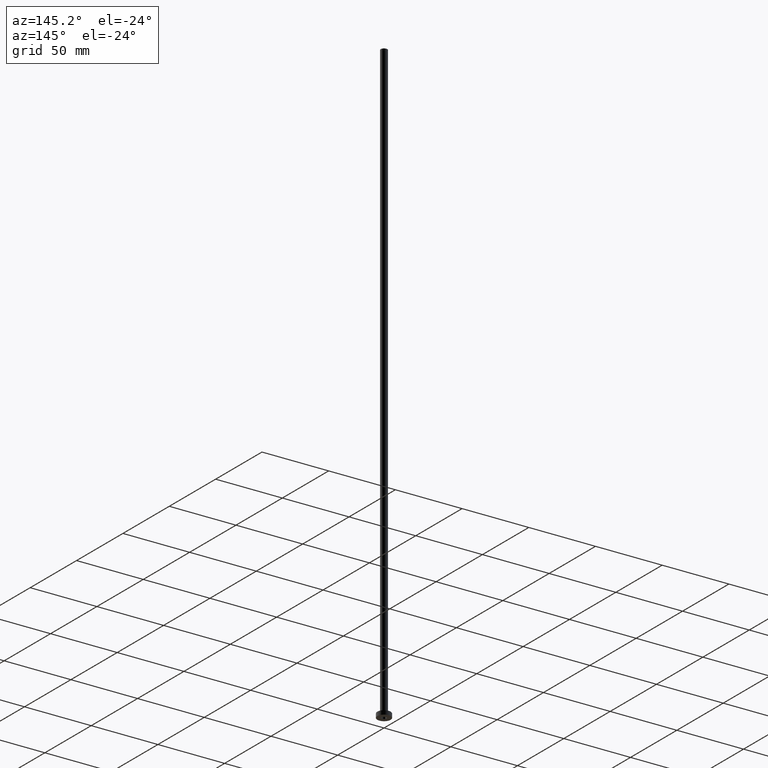
[diagram: clean part render]
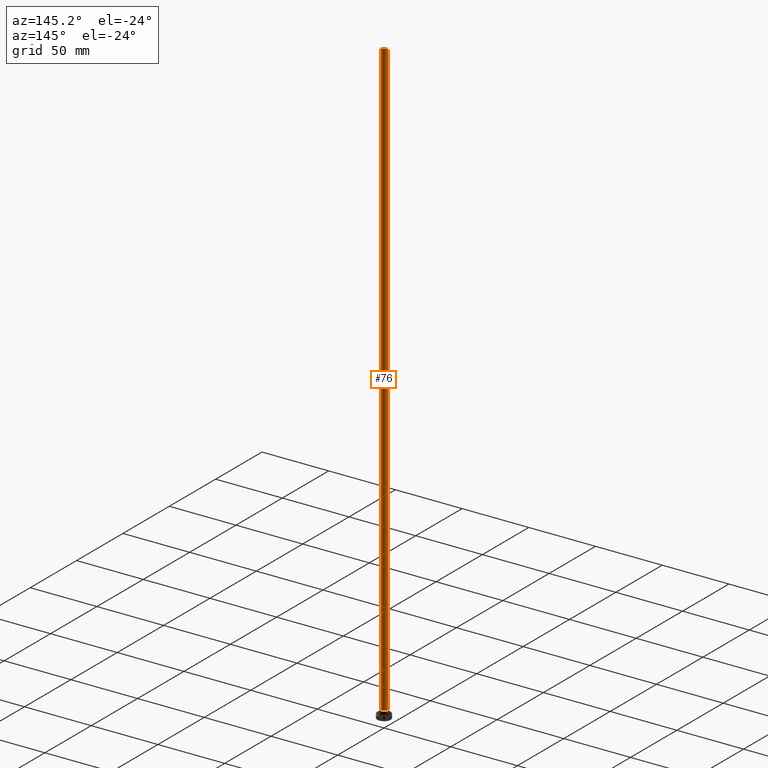
[diagram: same view with one face highlighted and labeled with its STEP entity id]
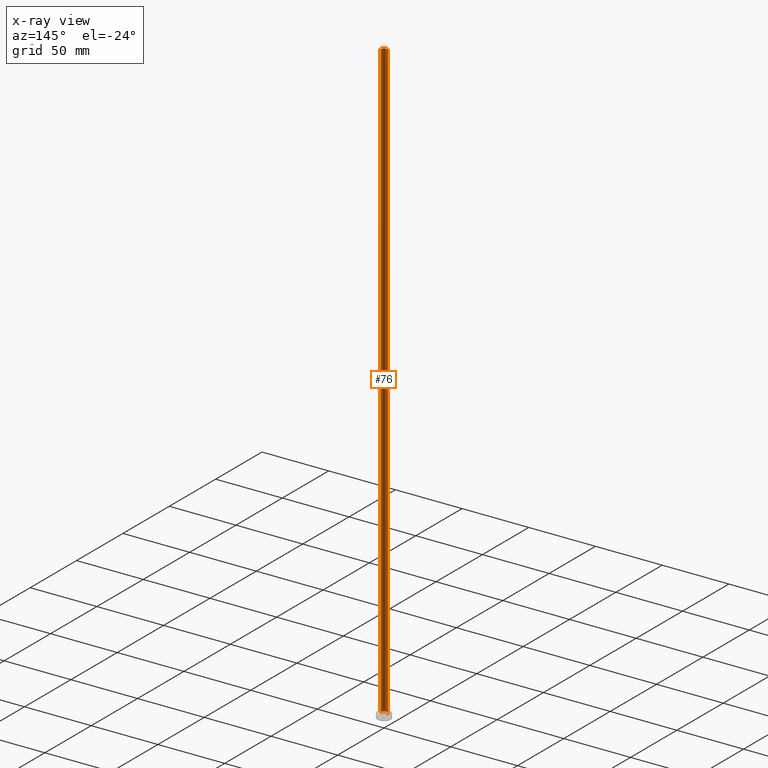
[diagram: x-ray of the same camera — body ghosted, the highlighted face saturated]
A machine part, auxiliary view. The second image highlights one B-rep face of the part: STEP entity #76.
The next image is the same camera in x-ray: the body ghosted, the highlighted face saturated — about 0% of this face is hidden behind the body in this view.
In plain terms, the highlighted cylindrical surface (edge-blend (fillet) strip) has radius 2.5 mm, axis along (-0, -0, -1).
Its self-contained STEP definition (entity closure, byte-faithful):
#8 = DIRECTION ( 'NONE',  ( 1.000000000000000000, 0.000000000000000000, 0.000000000000000000 ) ) ;
#27 = CARTESIAN_POINT ( 'NONE',  ( -2.500000000000000000, 0.000000000000000000, 450.0000000000000000 ) ) ;
#36 = FACE_OUTER_BOUND ( 'NONE', #182, .T. ) ;
#67 = CARTESIAN_POINT ( 'NONE',  ( 0.000000000000000000, 0.000000000000000000, 3.300000000000025135 ) ) ;
#76 = ADVANCED_FACE ( 'NONE', ( #36 ), #326, .T. ) ;
#86 = EDGE_CURVE ( 'NONE', #418, #188, #330, .T. ) ;
#87 = DIRECTION ( 'NONE',  ( 0.000000000000000000, 0.000000000000000000, 1.000000000000000000 ) ) ;
#106 = CARTESIAN_POINT ( 'NONE',  ( 2.500000000000000000, 3.061616997868383141E-16, 450.0000000000000000 ) ) ;
#115 = ORIENTED_EDGE ( 'NONE', *, *, #298, .F. ) ;
#139 = DIRECTION ( 'NONE',  ( -0.000000000000000000, -0.000000000000000000, -1.000000000000000000 ) ) ;
#161 = LINE ( 'NONE', #270, #315 ) ;
#166 = ORIENTED_EDGE ( 'NONE', *, *, #333, .F. ) ;
#177 = EDGE_CURVE ( 'NONE', #281, #418, #161, .T. ) ;
#182 = EDGE_LOOP ( 'NONE', ( #115, #192, #443, #166 ) ) ;
#188 = VERTEX_POINT ( 'NONE', #342 ) ;
#189 = AXIS2_PLACEMENT_3D ( 'NONE', #193, #87, #8 ) ;
#190 = AXIS2_PLACEMENT_3D ( 'NONE', #67, #297, #367 ) ;
#192 = ORIENTED_EDGE ( 'NONE', *, *, #177, .T. ) ;
#193 = CARTESIAN_POINT ( 'NONE',  ( 0.000000000000000000, 0.000000000000000000, 450.0000000000000000 ) ) ;
#217 = DIRECTION ( 'NONE',  ( -1.000000000000000000, 0.000000000000000000, 0.000000000000000000 ) ) ;
#232 = LINE ( 'NONE', #411, #439 ) ;
#246 = VERTEX_POINT ( 'NONE', #27 ) ;
#248 = CARTESIAN_POINT ( 'NONE',  ( 2.500000000000000000, 3.061616997868383141E-16, 3.300000000000025135 ) ) ;
#251 = CARTESIAN_POINT ( 'NONE',  ( 0.000000000000000000, 0.000000000000000000, 450.0000000000000000 ) ) ;
#260 = CIRCLE ( 'NONE', #189, 2.500000000000000000 ) ;
#270 = CARTESIAN_POINT ( 'NONE',  ( 2.500000000000000000, 3.061616997868383141E-16, 450.0000000000000000 ) ) ;
#281 = VERTEX_POINT ( 'NONE', #106 ) ;
#297 = DIRECTION ( 'NONE',  ( 0.000000000000000000, 0.000000000000000000, 1.000000000000000000 ) ) ;
#298 = EDGE_CURVE ( 'NONE', #281, #246, #260, .T. ) ;
#302 = DIRECTION ( 'NONE',  ( -0.000000000000000000, -0.000000000000000000, -1.000000000000000000 ) ) ;
#315 = VECTOR ( 'NONE', #139, 1000.000000000000000 ) ;
#326 = CYLINDRICAL_SURFACE ( 'NONE', #377, 2.500000000000000000 ) ;
#330 = CIRCLE ( 'NONE', #190, 2.500000000000000000 ) ;
#333 = EDGE_CURVE ( 'NONE', #246, #188, #232, .T. ) ;
#342 = CARTESIAN_POINT ( 'NONE',  ( -2.500000000000000000, 0.000000000000000000, 3.300000000000025135 ) ) ;
#367 = DIRECTION ( 'NONE',  ( 1.000000000000000000, 0.000000000000000000, 0.000000000000000000 ) ) ;
#377 = AXIS2_PLACEMENT_3D ( 'NONE', #251, #403, #217 ) ;
#403 = DIRECTION ( 'NONE',  ( -0.000000000000000000, -0.000000000000000000, -1.000000000000000000 ) ) ;
#411 = CARTESIAN_POINT ( 'NONE',  ( -2.500000000000000000, 0.000000000000000000, 450.0000000000000000 ) ) ;
#418 = VERTEX_POINT ( 'NONE', #248 ) ;
#439 = VECTOR ( 'NONE', #302, 1000.000000000000000 ) ;
#443 = ORIENTED_EDGE ( 'NONE', *, *, #86, .T. ) ;